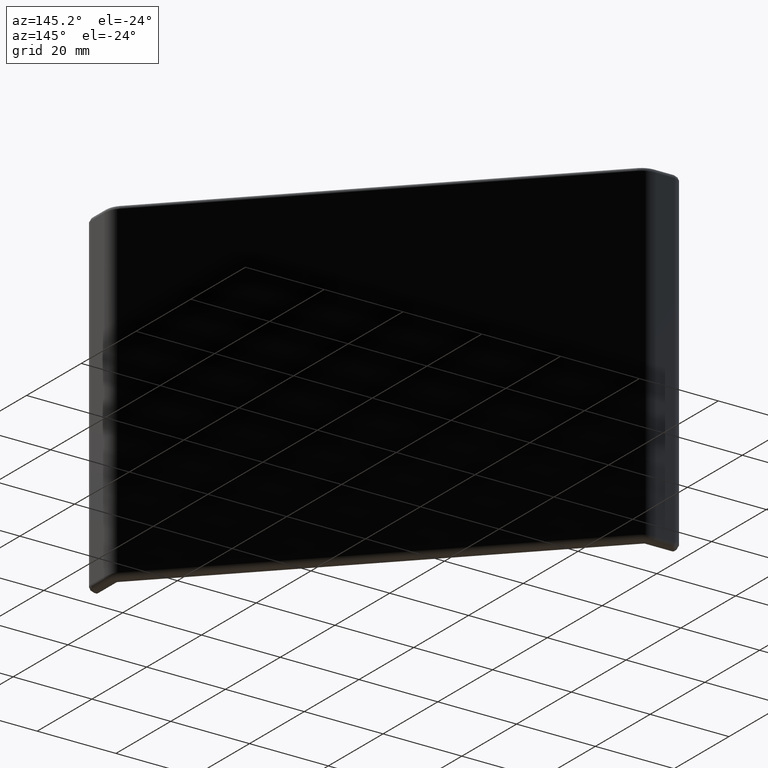
[diagram: clean part render]
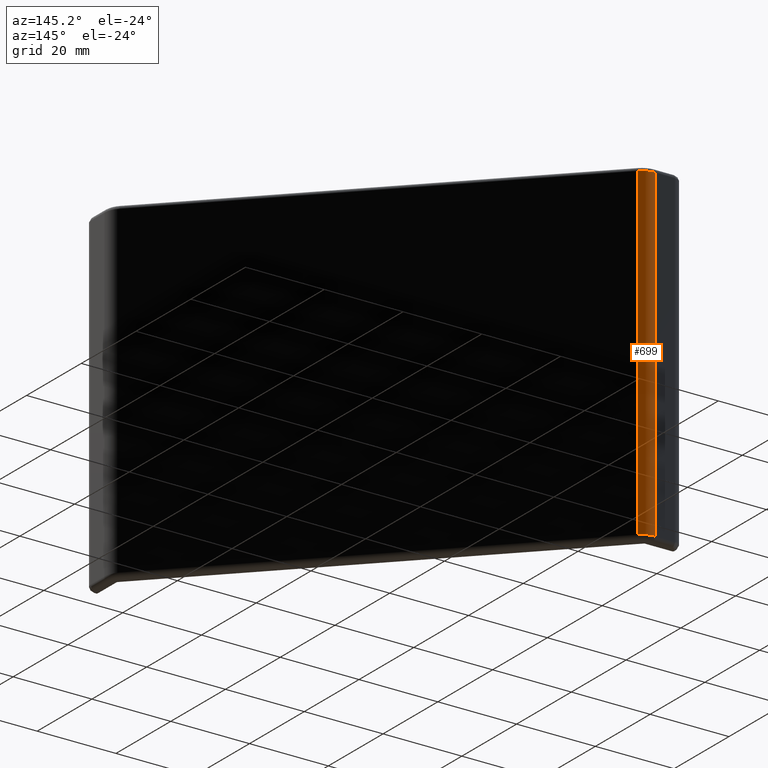
[diagram: same view with one face highlighted and labeled with its STEP entity id]
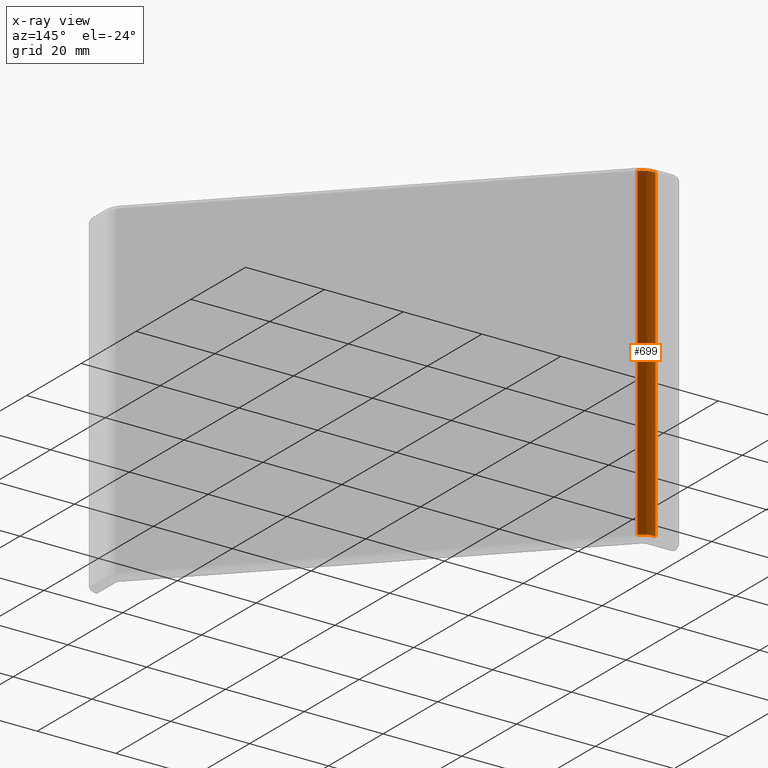
[diagram: x-ray of the same camera — body ghosted, the highlighted face saturated]
A machine part, auxiliary view. The second image highlights one B-rep face of the part: STEP entity #699.
The next image is the same camera in x-ray: the body ghosted, the highlighted face saturated — about 0% of this face is hidden behind the body in this view.
In plain terms, the highlighted cylindrical surface (edge-blend (fillet) strip) has radius 5 mm, axis along (0, 0, -1).
Its self-contained STEP definition (entity closure, byte-faithful):
#38=CYLINDRICAL_SURFACE('',#772,5.);
#79=FACE_OUTER_BOUND('',#123,.T.);
#123=EDGE_LOOP('',(#622,#623,#624,#625));
#175=LINE('',#1116,#237);
#177=LINE('',#1122,#239);
#237=VECTOR('',#877,83.);
#239=VECTOR('',#881,83.);
#284=CIRCLE('',#771,5.);
#285=CIRCLE('',#773,5.);
#336=VERTEX_POINT('',#1109);
#339=VERTEX_POINT('',#1114);
#341=VERTEX_POINT('',#1119);
#342=VERTEX_POINT('',#1121);
#407=EDGE_CURVE('',#339,#336,#175,.T.);
#409=EDGE_CURVE('',#341,#342,#177,.T.);
#442=EDGE_CURVE('',#341,#336,#284,.T.);
#443=EDGE_CURVE('',#342,#339,#285,.T.);
#622=ORIENTED_EDGE('',*,*,#442,.T.);
#623=ORIENTED_EDGE('',*,*,#407,.F.);
#624=ORIENTED_EDGE('',*,*,#443,.F.);
#625=ORIENTED_EDGE('',*,*,#409,.F.);
#699=ADVANCED_FACE('',(#79),#38,.T.);
#771=AXIS2_PLACEMENT_3D('',#1216,#974,#975);
#772=AXIS2_PLACEMENT_3D('',#1217,#976,#977);
#773=AXIS2_PLACEMENT_3D('',#1218,#978,#979);
#877=DIRECTION('',(0.,0.,1.));
#881=DIRECTION('',(0.,0.,-1.));
#974=DIRECTION('center_axis',(0.,0.,-1.));
#975=DIRECTION('ref_axis',(1.,-2.77555756156289E-15,0.));
#976=DIRECTION('center_axis',(0.,0.,-1.));
#977=DIRECTION('ref_axis',(-1.,0.,0.));
#978=DIRECTION('center_axis',(0.,0.,-1.));
#979=DIRECTION('ref_axis',(1.,-2.77555756156289E-15,0.));
#1109=CARTESIAN_POINT('',(10.5,88.0355339059327,41.5));
#1114=CARTESIAN_POINT('',(10.5,88.0355339059327,-41.5));
#1116=CARTESIAN_POINT('',(10.5,88.0355339059327,42.5));
#1119=CARTESIAN_POINT('',(6.96446609406723,89.5,41.5));
#1121=CARTESIAN_POINT('',(6.96446609406723,89.5,-41.5));
#1122=CARTESIAN_POINT('',(6.96446609406723,89.5,42.5));
#1216=CARTESIAN_POINT('Origin',(6.96446609406723,84.5,41.5));
#1217=CARTESIAN_POINT('Origin',(6.96446609406723,84.5,42.5));
#1218=CARTESIAN_POINT('Origin',(6.96446609406723,84.5,-41.5));